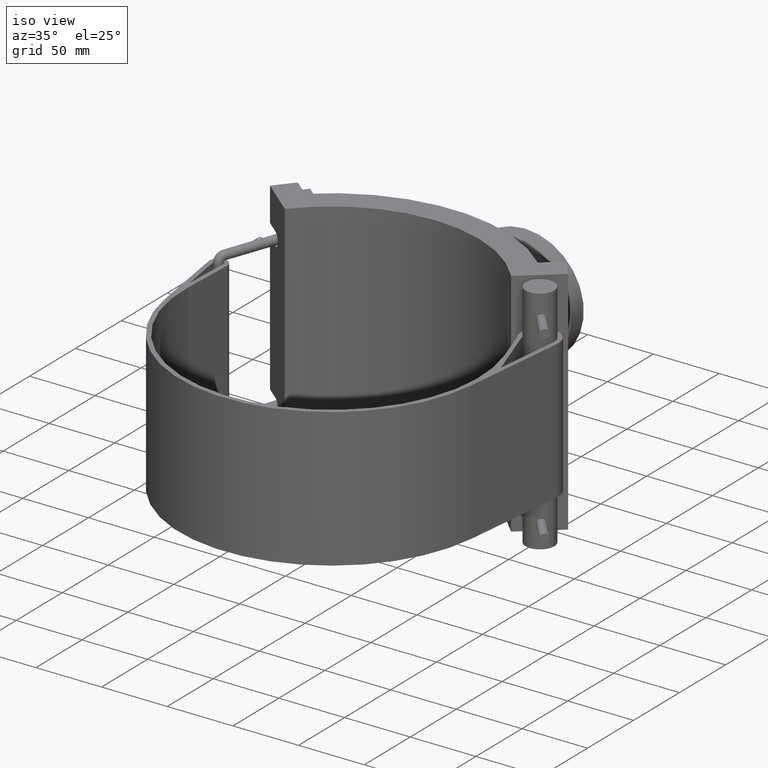
[diagram: clean part render]
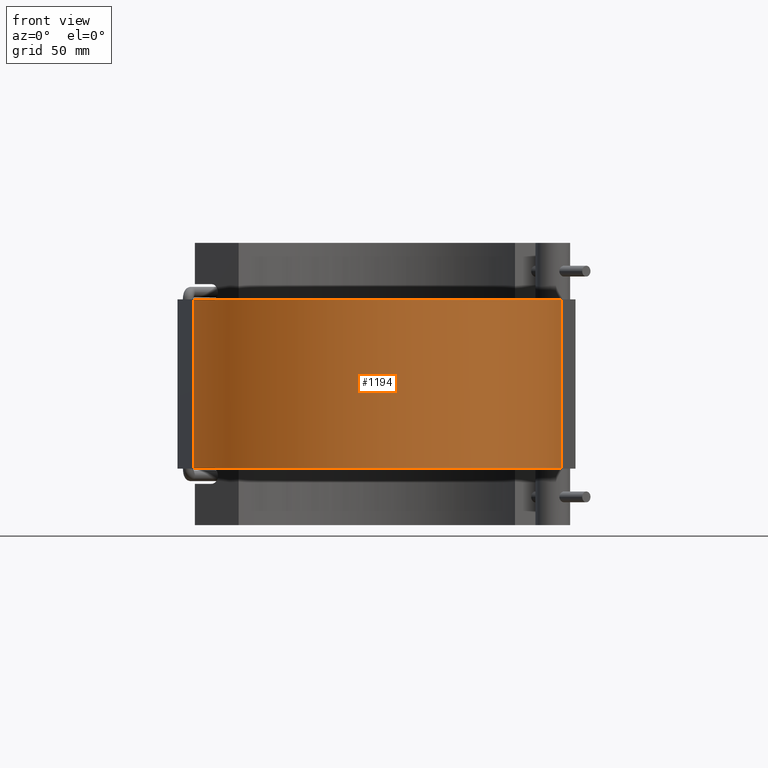
[diagram: tour spotlight — one face highlighted and labeled with its STEP entity id]
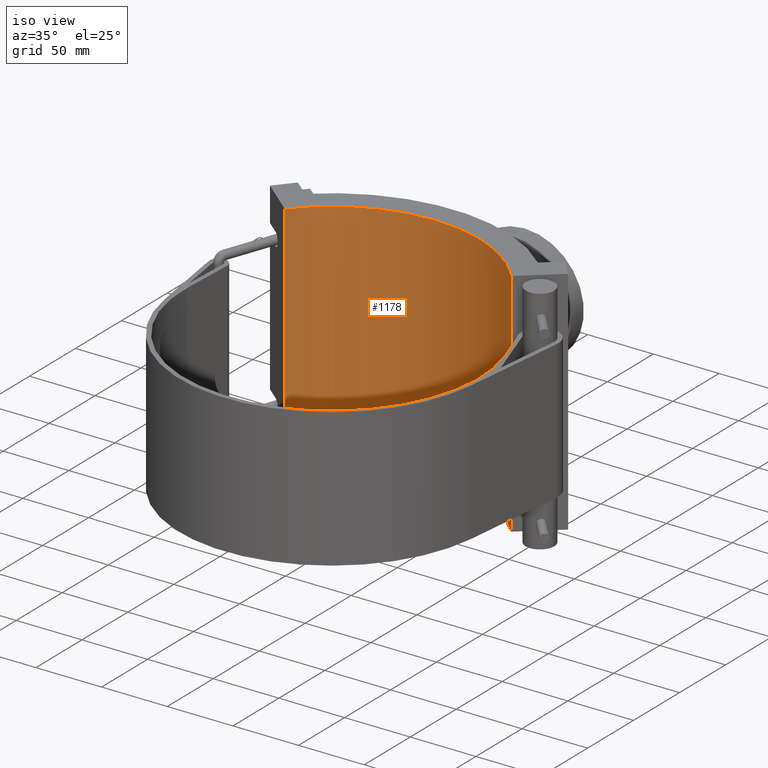
[diagram: tour spotlight — one face highlighted and labeled with its STEP entity id]
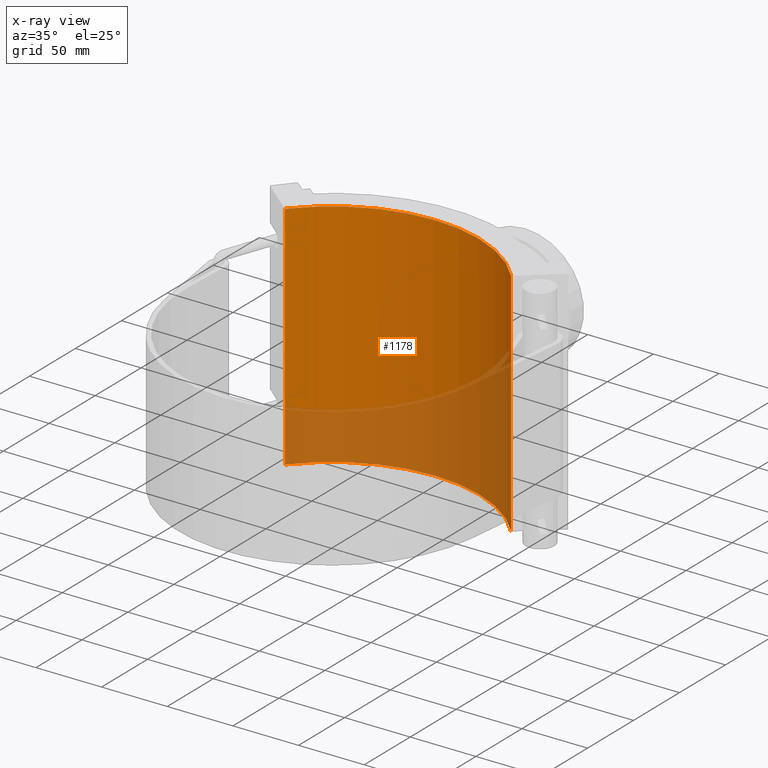
[diagram: x-ray of the same camera — body ghosted, this tour face saturated]
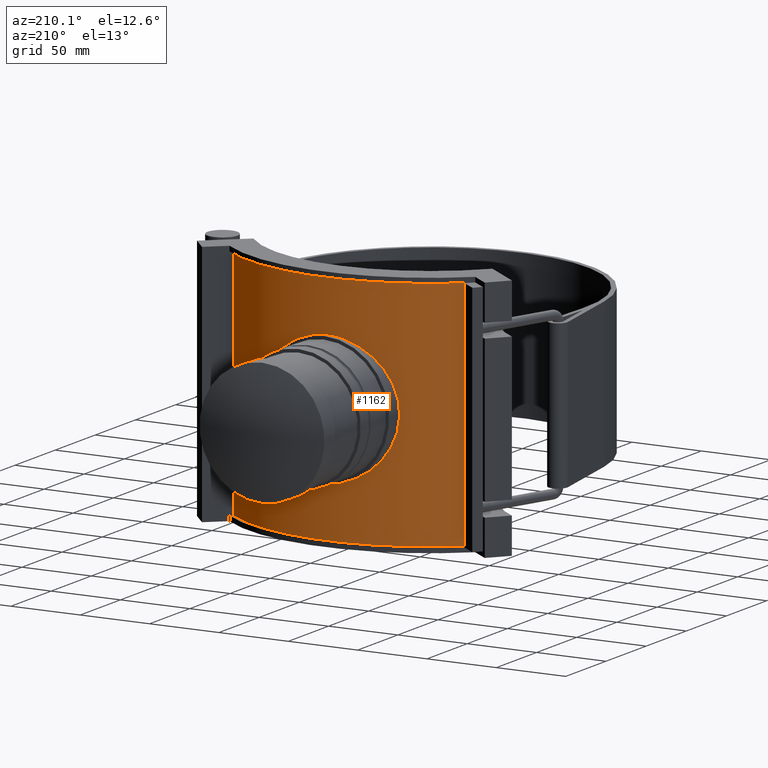
[diagram: tour spotlight — one face highlighted and labeled with its STEP entity id]
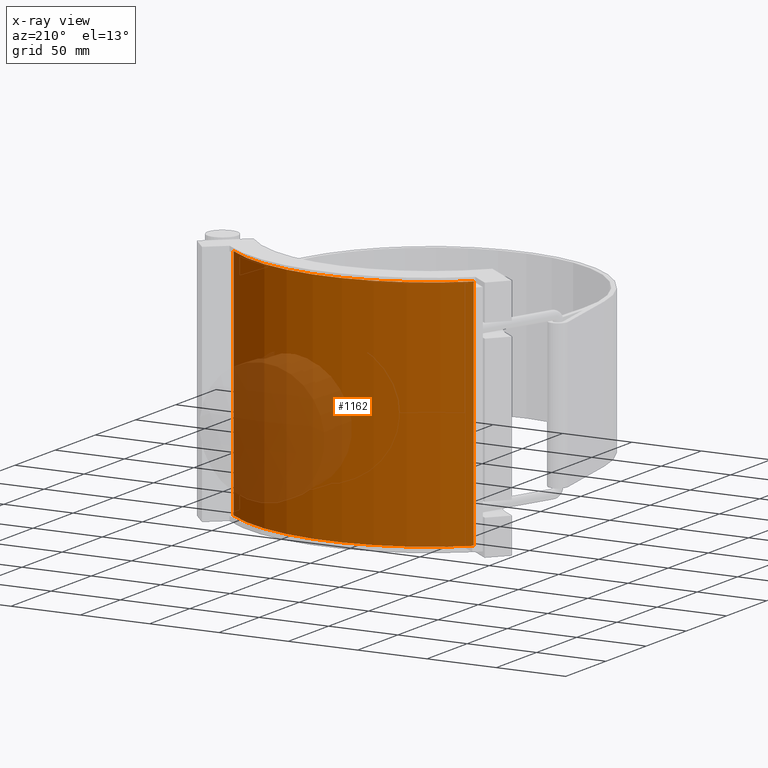
[diagram: x-ray of the same camera — body ghosted, this tour face saturated]
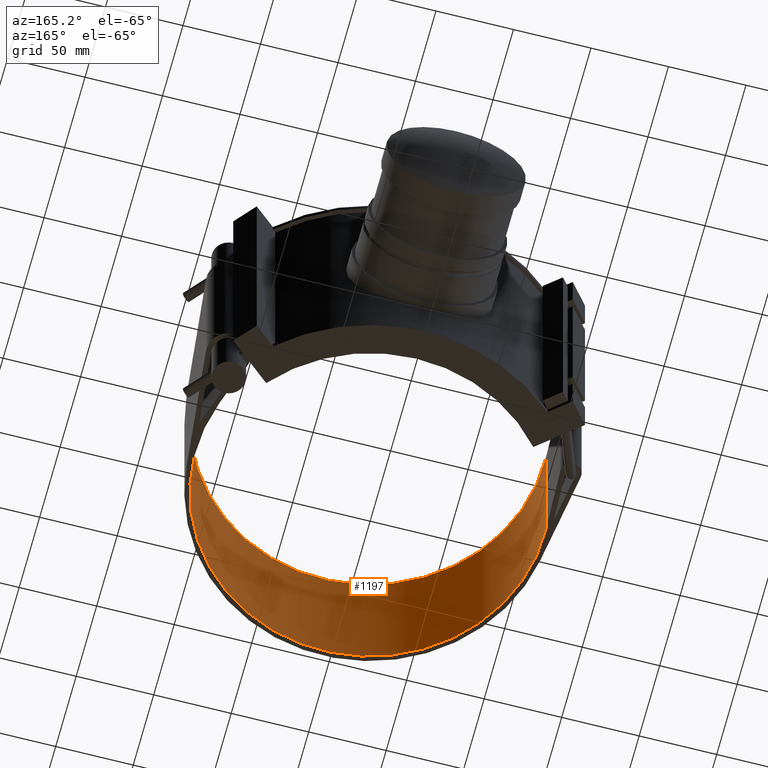
[diagram: tour spotlight — one face highlighted and labeled with its STEP entity id]
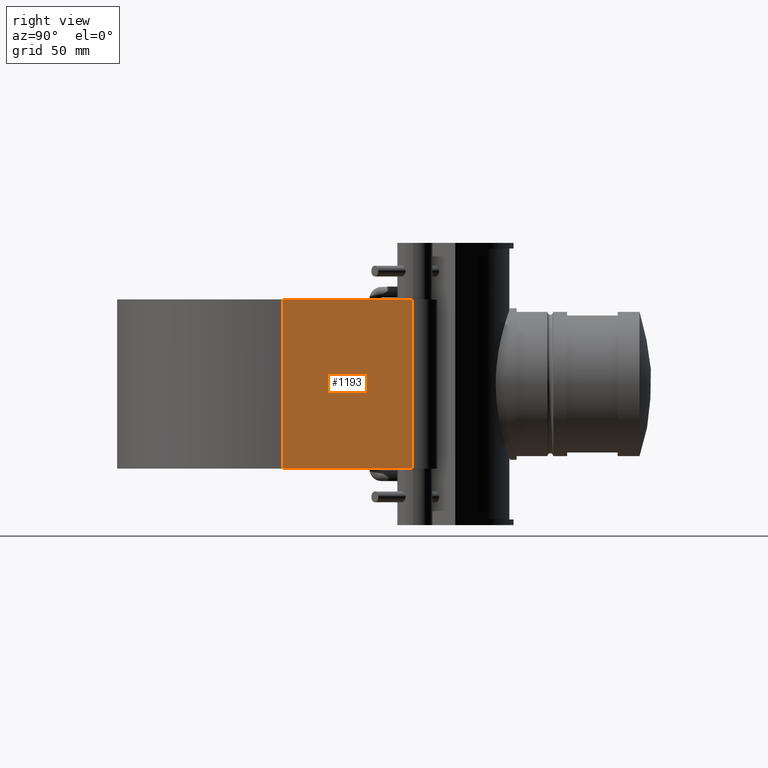
[diagram: tour spotlight — one face highlighted and labeled with its STEP entity id]
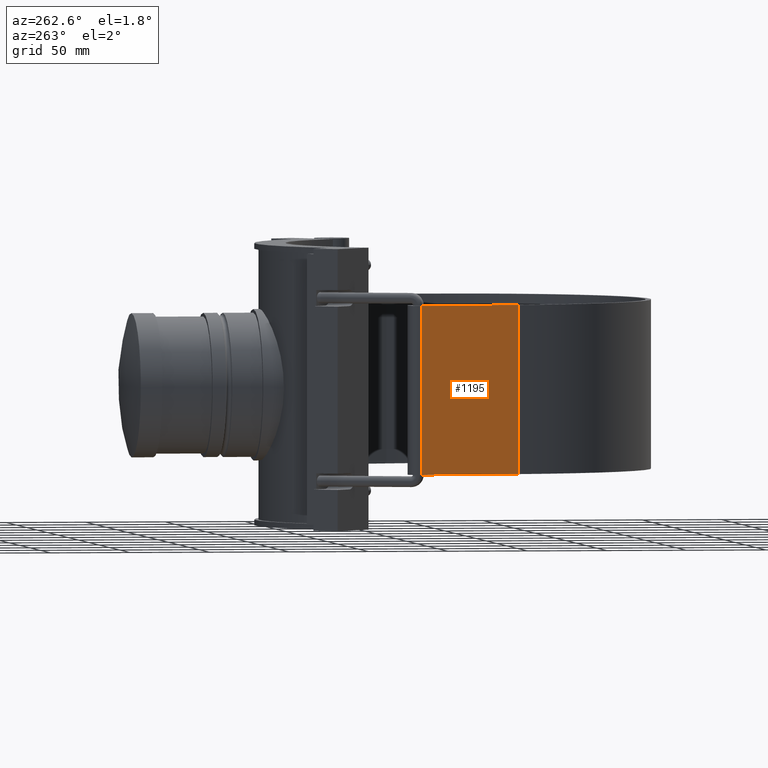
[diagram: tour spotlight — one face highlighted and labeled with its STEP entity id]
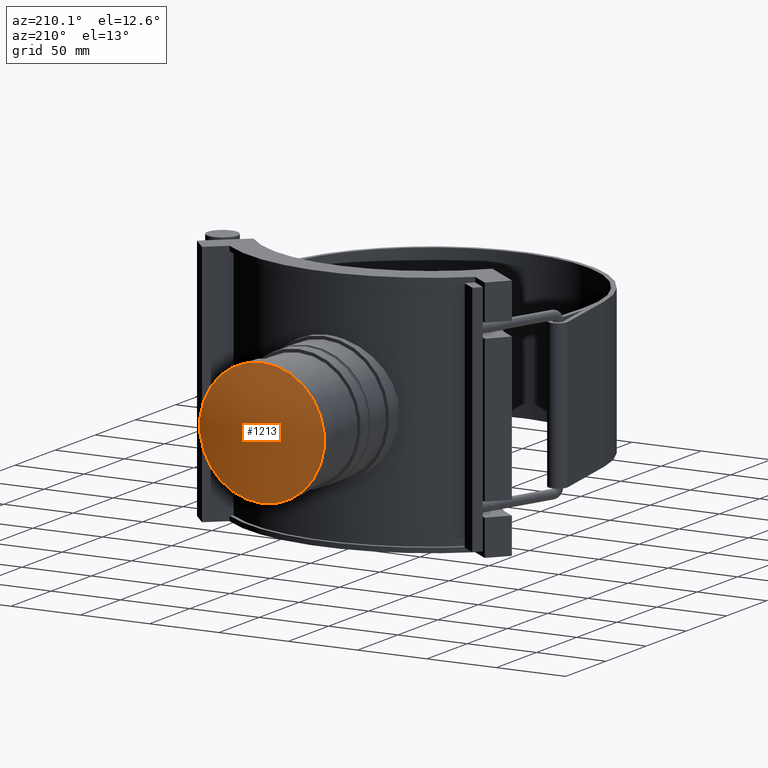
[diagram: tour spotlight — one face highlighted and labeled with its STEP entity id]
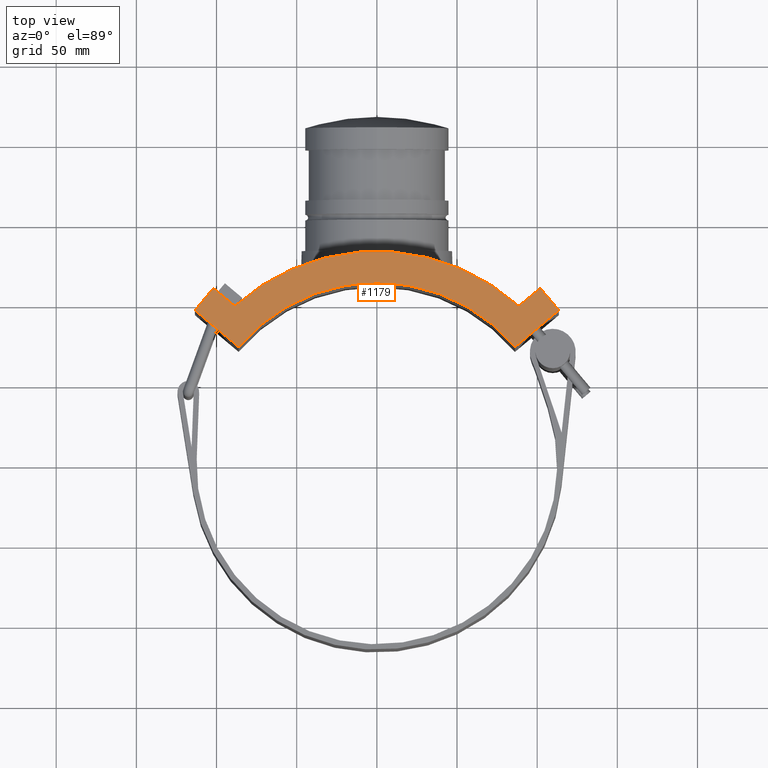
[diagram: tour spotlight — one face highlighted and labeled with its STEP entity id]
A machine part: a face-by-face anatomy tour. The part has 72 B-rep faces; the first image is the clean iso view, then the 8 largest visible faces are spotlighted one at a time (largest first), each with its STEP entity span.

Face 1 — front view, entity #1194. In plain terms, the highlighted cylindrical surface (partial cylindrical patch) has radius 115.875 mm, axis along (0, 0, 1).
Definition (entity closure, byte-faithful):
#121=LINE('',#2114,#224);
#122=LINE('',#2116,#225);
#224=VECTOR('',#1624,105.6);
#225=VECTOR('',#1627,105.6);
#360=FACE_OUTER_BOUND('',#448,.T.);
#448=EDGE_LOOP('',(#1061,#1062,#1063,#1064));
#504=CIRCLE('',#1281,115.875);
#512=CIRCLE('',#1290,115.875);
#604=VERTEX_POINT('',#2043);
#605=VERTEX_POINT('',#2045);
#619=VERTEX_POINT('',#2075);
#620=VERTEX_POINT('',#2077);
#747=EDGE_CURVE('',#604,#605,#504,.T.);
#763=EDGE_CURVE('',#619,#620,#512,.T.);
#782=EDGE_CURVE('',#604,#620,#121,.T.);
#783=EDGE_CURVE('',#605,#619,#122,.T.);
#1061=ORIENTED_EDGE('',*,*,#782,.T.);
#1062=ORIENTED_EDGE('',*,*,#763,.F.);
#1063=ORIENTED_EDGE('',*,*,#783,.F.);
#1064=ORIENTED_EDGE('',*,*,#747,.F.);
#1131=CYLINDRICAL_SURFACE('',#1309,115.875);
#1194=ADVANCED_FACE('',(#360),#1131,.T.);
#1281=AXIS2_PLACEMENT_3D('',#2046,#1550,#1551);
#1290=AXIS2_PLACEMENT_3D('',#2078,#1576,#1577);
#1309=AXIS2_PLACEMENT_3D('',#2115,#1625,#1626);
#1550=DIRECTION('center_axis',(0.,0.,-1.));
#1551=DIRECTION('ref_axis',(0.843056466556245,0.537825059101655,0.));
#1576=DIRECTION('center_axis',(0.,0.,1.));
#1577=DIRECTION('ref_axis',(0.843056466556245,0.537825059101655,0.));
#1624=DIRECTION('',(0.,0.,1.));
#1625=DIRECTION('center_axis',(0.,0.,1.));
#1626=DIRECTION('ref_axis',(0.843056466556245,0.537825059101655,0.));
#1627=DIRECTION('',(0.,0.,1.));
#2043=CARTESIAN_POINT('',(115.208094420165,-12.4141292515579,-52.8));
#2045=CARTESIAN_POINT('',(-114.448078862671,-18.128785663798,-52.8));
#2046=CARTESIAN_POINT('Origin',(0.,0.,-52.8));
#2075=CARTESIAN_POINT('',(-114.448078862671,-18.128785663798,52.8));
#2077=CARTESIAN_POINT('',(115.208094420165,-12.4141292515579,52.8));
#2078=CARTESIAN_POINT('Origin',(0.,0.,52.8));
#2114=CARTESIAN_POINT('',(115.208094420165,-12.4141292515579,0.));
#2115=CARTESIAN_POINT('Origin',(0.,0.,0.));
#2116=CARTESIAN_POINT('',(-114.448078862671,-18.128785663798,0.));

Face 2 — iso view, entity #1178. An x-ray twin of the same camera follows (body ghosted, this face saturated) — the face is partly hidden behind the body. In plain terms, the highlighted cylindrical surface (partial cylindrical patch) has radius 112.5 mm, axis along (0, 0, 1).
Definition (entity closure, byte-faithful):
#90=LINE('',#2011,#193);
#94=LINE('',#2018,#197);
#193=VECTOR('',#1515,176.);
#197=VECTOR('',#1523,176.);
#344=FACE_OUTER_BOUND('',#424,.T.);
#424=EDGE_LOOP('',(#977,#978,#979,#980));
#498=CIRCLE('',#1258,112.5);
#502=CIRCLE('',#1275,112.5);
#582=VERTEX_POINT('',#1968);
#583=VERTEX_POINT('',#1970);
#594=VERTEX_POINT('',#2010);
#595=VERTEX_POINT('',#2016);
#711=EDGE_CURVE('',#582,#583,#498,.T.);
#731=EDGE_CURVE('',#594,#583,#90,.T.);
#735=EDGE_CURVE('',#582,#595,#94,.T.);
#737=EDGE_CURVE('',#594,#595,#502,.T.);
#977=ORIENTED_EDGE('',*,*,#731,.T.);
#978=ORIENTED_EDGE('',*,*,#711,.F.);
#979=ORIENTED_EDGE('',*,*,#735,.T.);
#980=ORIENTED_EDGE('',*,*,#737,.F.);
#1126=CYLINDRICAL_SURFACE('',#1274,112.5);
#1178=ADVANCED_FACE('',(#344),#1126,.F.);
#1258=AXIS2_PLACEMENT_3D('',#1971,#1474,#1475);
#1274=AXIS2_PLACEMENT_3D('',#2021,#1528,#1529);
#1275=AXIS2_PLACEMENT_3D('',#2022,#1530,#1531);
#1474=DIRECTION('center_axis',(0.,0.,1.));
#1475=DIRECTION('ref_axis',(-1.,0.,0.));
#1515=DIRECTION('',(0.,0.,-1.));
#1523=DIRECTION('',(0.,0.,1.));
#1528=DIRECTION('center_axis',(0.,0.,1.));
#1529=DIRECTION('ref_axis',(-1.,0.,0.));
#1530=DIRECTION('center_axis',(0.,0.,-1.));
#1531=DIRECTION('ref_axis',(-1.,0.,0.));
#1968=CARTESIAN_POINT('',(86.179999850885,72.3136060897357,-88.));
#1970=CARTESIAN_POINT('',(-86.179999850885,72.3136060897357,-88.));
#1971=CARTESIAN_POINT('Origin',(0.,0.,-88.));
#2010=CARTESIAN_POINT('',(-86.179999850885,72.3136060897357,88.));
#2011=CARTESIAN_POINT('',(-86.179999850885,72.3136060897357,0.));
#2016=CARTESIAN_POINT('',(86.179999850885,72.3136060897357,88.));
#2018=CARTESIAN_POINT('',(86.179999850885,72.3136060897357,0.));
#2021=CARTESIAN_POINT('Origin',(0.,0.,0.));
#2022=CARTESIAN_POINT('Origin',(0.,0.,88.));

Face 3 — auxiliary view, entity #1162. An x-ray twin of the same camera follows (body ghosted, this face saturated) — the face is partly hidden behind the body. In plain terms, the highlighted cylindrical surface (partial cylindrical patch) has radius 129.375 mm, axis along (0, 0, 1).
Definition (entity closure, byte-faithful):
#59=LINE('',#1931,#162);
#70=LINE('',#1956,#173);
#162=VECTOR('',#1432,168.96);
#173=VECTOR('',#1451,168.96);
#328=FACE_OUTER_BOUND('',#406,.T.);
#406=EDGE_LOOP('',(#891,#892,#893,#894));
#493=CIRCLE('',#1249,129.375);
#495=CIRCLE('',#1252,129.375);
#570=VERTEX_POINT('',#1928);
#571=VERTEX_POINT('',#1930);
#580=VERTEX_POINT('',#1953);
#581=VERTEX_POINT('',#1955);
#690=EDGE_CURVE('',#571,#570,#59,.T.);
#703=EDGE_CURVE('',#581,#580,#70,.T.);
#705=EDGE_CURVE('',#570,#581,#493,.T.);
#707=EDGE_CURVE('',#580,#571,#495,.T.);
#891=ORIENTED_EDGE('',*,*,#703,.T.);
#892=ORIENTED_EDGE('',*,*,#707,.T.);
#893=ORIENTED_EDGE('',*,*,#690,.T.);
#894=ORIENTED_EDGE('',*,*,#705,.T.);
#1121=CYLINDRICAL_SURFACE('',#1251,129.375);
#1162=ADVANCED_FACE('',(#328),#1121,.T.);
#1249=AXIS2_PLACEMENT_3D('',#1959,#1455,#1456);
#1251=AXIS2_PLACEMENT_3D('',#1961,#1459,#1460);
#1252=AXIS2_PLACEMENT_3D('',#1962,#1461,#1462);
#1432=DIRECTION('',(0.,0.,1.));
#1451=DIRECTION('',(0.,0.,-1.));
#1455=DIRECTION('center_axis',(0.,0.,-1.));
#1456=DIRECTION('ref_axis',(-1.,0.,0.));
#1459=DIRECTION('center_axis',(0.,0.,1.));
#1460=DIRECTION('ref_axis',(-1.,0.,0.));
#1461=DIRECTION('center_axis',(0.,0.,1.));
#1462=DIRECTION('ref_axis',(-1.,0.,0.));
#1928=CARTESIAN_POINT('',(-86.5729145309936,96.1406318608801,84.48));
#1930=CARTESIAN_POINT('',(-86.5729145309936,96.1406318608801,-84.48));
#1931=CARTESIAN_POINT('',(-86.5729145309936,96.1406318608801,0.));
#1953=CARTESIAN_POINT('',(86.5729145309936,96.1406318608801,-84.48));
#1955=CARTESIAN_POINT('',(86.5729145309936,96.1406318608801,84.48));
#1956=CARTESIAN_POINT('',(86.5729145309936,96.1406318608801,0.));
#1959=CARTESIAN_POINT('Origin',(0.,0.,84.48));
#1961=CARTESIAN_POINT('Origin',(0.,0.,0.));
#1962=CARTESIAN_POINT('Origin',(0.,0.,-84.48));

Face 4 — auxiliary view, entity #1197. In plain terms, the highlighted cylindrical surface (partial cylindrical patch) has radius 112.5 mm, axis along (0, 0, 1).
Definition (entity closure, byte-faithful):
#119=LINE('',#2111,#222);
#125=LINE('',#2121,#228);
#222=VECTOR('',#1620,105.6);
#228=VECTOR('',#1634,105.6);
#363=FACE_OUTER_BOUND('',#451,.T.);
#451=EDGE_LOOP('',(#1073,#1074,#1075,#1076));
#506=CIRCLE('',#1283,112.5);
#510=CIRCLE('',#1288,112.5);
#608=VERTEX_POINT('',#2051);
#609=VERTEX_POINT('',#2053);
#615=VERTEX_POINT('',#2067);
#616=VERTEX_POINT('',#2069);
#751=EDGE_CURVE('',#608,#609,#506,.T.);
#759=EDGE_CURVE('',#615,#616,#510,.T.);
#780=EDGE_CURVE('',#609,#615,#119,.T.);
#786=EDGE_CURVE('',#608,#616,#125,.T.);
#1073=ORIENTED_EDGE('',*,*,#786,.T.);
#1074=ORIENTED_EDGE('',*,*,#759,.F.);
#1075=ORIENTED_EDGE('',*,*,#780,.F.);
#1076=ORIENTED_EDGE('',*,*,#751,.F.);
#1132=CYLINDRICAL_SURFACE('',#1312,112.5);
#1197=ADVANCED_FACE('',(#363),#1132,.F.);
#1283=AXIS2_PLACEMENT_3D('',#2054,#1556,#1557);
#1288=AXIS2_PLACEMENT_3D('',#2070,#1570,#1571);
#1312=AXIS2_PLACEMENT_3D('',#2122,#1635,#1636);
#1556=DIRECTION('center_axis',(0.,0.,1.));
#1557=DIRECTION('ref_axis',(0.999267082188382,-0.0382792170076393,0.));
#1570=DIRECTION('center_axis',(0.,0.,-1.));
#1571=DIRECTION('ref_axis',(0.999267082188382,-0.0382792170076393,0.));
#1620=DIRECTION('',(0.,0.,1.));
#1634=DIRECTION('',(0.,0.,1.));
#1635=DIRECTION('center_axis',(0.,0.,1.));
#1636=DIRECTION('ref_axis',(0.999267082188382,-0.0382792170076393,0.));
#2051=CARTESIAN_POINT('',(-112.417546746193,4.30641191335942,-52.8));
#2053=CARTESIAN_POINT('',(106.577970859299,36.019246626136,-52.8));
#2054=CARTESIAN_POINT('Origin',(0.,0.,-52.8));
#2067=CARTESIAN_POINT('',(106.577970859299,36.019246626136,52.8));
#2069=CARTESIAN_POINT('',(-112.417546746193,4.30641191335942,52.8));
#2070=CARTESIAN_POINT('Origin',(0.,0.,52.8));
#2111=CARTESIAN_POINT('',(106.577970859299,36.019246626136,0.));
#2121=CARTESIAN_POINT('',(-112.417546746193,4.30641191335942,0.));
#2122=CARTESIAN_POINT('Origin',(0.,0.,0.));

Face 5 — right view, entity #1193. In plain terms, the highlighted planar face has unit normal (0.9942, -0.1071, 0).
Definition (entity closure, byte-faithful):
#102=LINE('',#2044,#205);
#111=LINE('',#2080,#214);
#120=LINE('',#2113,#223);
#121=LINE('',#2114,#224);
#205=VECTOR('',#1549,81.3525979444275);
#214=VECTOR('',#1578,81.3525979444275);
#223=VECTOR('',#1623,105.6);
#224=VECTOR('',#1624,105.6);
#264=PLANE('',#1308);
#359=FACE_OUTER_BOUND('',#447,.T.);
#447=EDGE_LOOP('',(#1057,#1058,#1059,#1060));
#603=VERTEX_POINT('',#2041);
#604=VERTEX_POINT('',#2043);
#620=VERTEX_POINT('',#2077);
#621=VERTEX_POINT('',#2079);
#746=EDGE_CURVE('',#603,#604,#102,.T.);
#764=EDGE_CURVE('',#620,#621,#111,.T.);
#781=EDGE_CURVE('',#603,#621,#120,.T.);
#782=EDGE_CURVE('',#604,#620,#121,.T.);
#1057=ORIENTED_EDGE('',*,*,#781,.T.);
#1058=ORIENTED_EDGE('',*,*,#764,.F.);
#1059=ORIENTED_EDGE('',*,*,#782,.F.);
#1060=ORIENTED_EDGE('',*,*,#746,.F.);
#1193=ADVANCED_FACE('',(#359),#264,.T.);
#1308=AXIS2_PLACEMENT_3D('',#2112,#1621,#1622);
#1549=DIRECTION('',(-0.107133801523693,-0.994244612040257,0.));
#1578=DIRECTION('',(0.107133801523693,0.994244612040257,0.));
#1621=DIRECTION('center_axis',(0.994244612040257,-0.107133801523693,0.));
#1622=DIRECTION('ref_axis',(0.107133801523693,0.994244612040257,0.));
#1623=DIRECTION('',(0.,0.,1.));
#1624=DIRECTION('',(0.,0.,1.));
#2041=CARTESIAN_POINT('',(123.92370750178,68.4702529301665,-52.8));
#2043=CARTESIAN_POINT('',(115.208094420165,-12.4141292515579,-52.8));
#2044=CARTESIAN_POINT('',(115.208094420165,-12.4141292515579,-52.8));
#2077=CARTESIAN_POINT('',(115.208094420165,-12.4141292515579,52.8));
#2079=CARTESIAN_POINT('',(123.92370750178,68.4702529301665,52.8));
#2080=CARTESIAN_POINT('',(115.208094420165,-12.4141292515579,52.8));
#2112=CARTESIAN_POINT('Origin',(115.208094420165,-12.4141292515579,0.));
#2113=CARTESIAN_POINT('',(123.92370750178,68.4702529301665,0.));
#2114=CARTESIAN_POINT('',(115.208094420165,-12.4141292515579,0.));

Face 6 — auxiliary view, entity #1195. In plain terms, the highlighted planar face has unit normal (-0.9877, -0.1565, 0).
Definition (entity closure, byte-faithful):
#103=LINE('',#2048,#206);
#110=LINE('',#2076,#213);
#122=LINE('',#2116,#225);
#123=LINE('',#2118,#226);
#206=VECTOR('',#1552,62.8466533212205);
#213=VECTOR('',#1575,62.8466533212205);
#225=VECTOR('',#1627,105.6);
#226=VECTOR('',#1630,105.6);
#265=PLANE('',#1310);
#361=FACE_OUTER_BOUND('',#449,.T.);
#449=EDGE_LOOP('',(#1065,#1066,#1067,#1068));
#605=VERTEX_POINT('',#2045);
#606=VERTEX_POINT('',#2047);
#618=VERTEX_POINT('',#2073);
#619=VERTEX_POINT('',#2075);
#748=EDGE_CURVE('',#605,#606,#103,.T.);
#762=EDGE_CURVE('',#618,#619,#110,.T.);
#783=EDGE_CURVE('',#605,#619,#122,.T.);
#784=EDGE_CURVE('',#606,#618,#123,.T.);
#1065=ORIENTED_EDGE('',*,*,#783,.T.);
#1066=ORIENTED_EDGE('',*,*,#762,.F.);
#1067=ORIENTED_EDGE('',*,*,#784,.F.);
#1068=ORIENTED_EDGE('',*,*,#748,.F.);
#1195=ADVANCED_FACE('',(#361),#265,.T.);
#1310=AXIS2_PLACEMENT_3D('',#2117,#1628,#1629);
#1552=DIRECTION('',(-0.156451224714547,0.98768568597774,0.));
#1575=DIRECTION('',(0.156451224714547,-0.98768568597774,0.));
#1627=DIRECTION('',(0.,0.,1.));
#1628=DIRECTION('center_axis',(-0.98768568597774,-0.156451224714547,0.));
#1629=DIRECTION('ref_axis',(0.156451224714546,-0.98768568597774,0.));
#1630=DIRECTION('',(0.,0.,1.));
#2045=CARTESIAN_POINT('',(-114.448078862671,-18.128785663798,-52.8));
#2047=CARTESIAN_POINT('',(-124.280514743986,43.9439542331768,-52.8));
#2048=CARTESIAN_POINT('',(-124.280514743986,43.9439542331768,-52.8));
#2073=CARTESIAN_POINT('',(-124.280514743986,43.9439542331768,52.8));
#2075=CARTESIAN_POINT('',(-114.448078862671,-18.128785663798,52.8));
#2076=CARTESIAN_POINT('',(-124.280514743986,43.9439542331768,52.8));
#2116=CARTESIAN_POINT('',(-114.448078862671,-18.128785663798,0.));
#2117=CARTESIAN_POINT('Origin',(-124.280514743986,43.9439542331768,0.));
#2118=CARTESIAN_POINT('',(-124.280514743986,43.9439542331768,0.));

Face 7 — auxiliary view, entity #1213. In plain terms, the highlighted spherical surface has radius 141.43 mm.
Definition (entity closure, byte-faithful):
#11=SPHERICAL_SURFACE('',#1339,141.430102040816);
#379=FACE_OUTER_BOUND('',#482,.T.);
#482=EDGE_LOOP('',(#1116));
#531=CIRCLE('',#1338,45.);
#639=VERTEX_POINT('',#2225);
#798=EDGE_CURVE('',#639,#639,#531,.T.);
#1116=ORIENTED_EDGE('',*,*,#798,.T.);
#1213=ADVANCED_FACE('',(#379),#11,.T.);
#1338=AXIS2_PLACEMENT_3D('',#2226,#1687,#1688);
#1339=AXIS2_PLACEMENT_3D('',#2227,#1689,#1690);
#1687=DIRECTION('center_axis',(0.,1.,-4.08357894115E-17));
#1688=DIRECTION('ref_axis',(1.,0.,0.));
#1689=DIRECTION('center_axis',(6.12323399573677E-17,0.,1.));
#1690=DIRECTION('ref_axis',(1.,0.,0.));
#2225=CARTESIAN_POINT('',(0.,210.15,45.));
#2226=CARTESIAN_POINT('Origin',(0.,210.15,-8.58164114482673E-15));
#2227=CARTESIAN_POINT('Origin',(0.,76.0698979591835,-8.88178419700125E-15));

Face 8 — top view, entity #1179. In plain terms, the highlighted planar face has unit normal (0, 0, 1).
Definition (entity closure, byte-faithful):
#56=LINE('',#1925,#159);
#61=LINE('',#1938,#164);
#66=LINE('',#1948,#169);
#88=LINE('',#2006,#191);
#91=LINE('',#2012,#194);
#93=LINE('',#2017,#196);
#159=VECTOR('',#1427,17.4346127309903);
#164=VECTOR('',#1440,18.);
#169=VECTOR('',#1447,17.4346127309903);
#191=VECTOR('',#1509,18.);
#194=VECTOR('',#1516,35.6637273392137);
#196=VECTOR('',#1522,35.6637273392137);
#256=PLANE('',#1276);
#345=FACE_OUTER_BOUND('',#425,.T.);
#425=EDGE_LOOP('',(#981,#982,#983,#984,#985,#986,#987,#988));
#501=CIRCLE('',#1273,131.9625);
#502=CIRCLE('',#1275,112.5);
#568=VERTEX_POINT('',#1922);
#569=VERTEX_POINT('',#1924);
#572=VERTEX_POINT('',#1936);
#573=VERTEX_POINT('',#1937);
#576=VERTEX_POINT('',#1945);
#593=VERTEX_POINT('',#2004);
#594=VERTEX_POINT('',#2010);
#595=VERTEX_POINT('',#2016);
#687=EDGE_CURVE('',#568,#569,#56,.T.);
#694=EDGE_CURVE('',#572,#573,#61,.T.);
#699=EDGE_CURVE('',#573,#576,#66,.T.);
#729=EDGE_CURVE('',#593,#568,#88,.T.);
#732=EDGE_CURVE('',#593,#594,#91,.T.);
#734=EDGE_CURVE('',#595,#572,#93,.T.);
#736=EDGE_CURVE('',#569,#576,#501,.T.);
#737=EDGE_CURVE('',#594,#595,#502,.T.);
#981=ORIENTED_EDGE('',*,*,#736,.F.);
#982=ORIENTED_EDGE('',*,*,#687,.F.);
#983=ORIENTED_EDGE('',*,*,#729,.F.);
#984=ORIENTED_EDGE('',*,*,#732,.T.);
#985=ORIENTED_EDGE('',*,*,#737,.T.);
#986=ORIENTED_EDGE('',*,*,#734,.T.);
#987=ORIENTED_EDGE('',*,*,#694,.T.);
#988=ORIENTED_EDGE('',*,*,#699,.T.);
#1179=ADVANCED_FACE('',(#345),#256,.T.);
#1273=AXIS2_PLACEMENT_3D('',#2020,#1526,#1527);
#1275=AXIS2_PLACEMENT_3D('',#2022,#1530,#1531);
#1276=AXIS2_PLACEMENT_3D('',#2023,#1532,#1533);
#1427=DIRECTION('',(0.766044443118978,-0.64278760968654,0.));
#1440=DIRECTION('',(-0.64278760968654,0.766044443118978,0.));
#1447=DIRECTION('',(-0.766044443118978,-0.64278760968654,0.));
#1509=DIRECTION('',(0.64278760968654,0.766044443118978,0.));
#1516=DIRECTION('',(0.766044443118978,-0.642787609686539,0.));
#1522=DIRECTION('',(0.766044443118978,0.64278760968654,0.));
#1526=DIRECTION('center_axis',(0.,0.,-1.));
#1527=DIRECTION('ref_axis',(-1.,-7.18501312118754E-17,0.));
#1530=DIRECTION('center_axis',(0.,0.,-1.));
#1531=DIRECTION('ref_axis',(-1.,0.,0.));
#1532=DIRECTION('center_axis',(0.,0.,1.));
#1533=DIRECTION('ref_axis',(1.,0.,0.));
#1922=CARTESIAN_POINT('',(-101.929823025642,109.026608114763,88.));
#1924=CARTESIAN_POINT('',(-88.5741348251358,97.8198550715992,88.));
#1925=CARTESIAN_POINT('',(-81.439822913806,91.8334565780987,88.));
#1936=CARTESIAN_POINT('',(113.5,95.2378081386214,88.));
#1937=CARTESIAN_POINT('',(101.929823025642,109.026608114763,88.));
#1938=CARTESIAN_POINT('',(104.822367269232,105.579408120728,88.));
#1945=CARTESIAN_POINT('',(88.5741348251358,97.8198550715992,88.));
#1948=CARTESIAN_POINT('',(81.439822913806,91.8334565780987,88.));
#2004=CARTESIAN_POINT('',(-113.5,95.2378081386214,88.));
#2006=CARTESIAN_POINT('',(-104.822367269232,105.579408120728,88.));
#2010=CARTESIAN_POINT('',(-86.179999850885,72.3136060897357,88.));
#2012=CARTESIAN_POINT('',(-50.5445699125441,42.41192997163,88.));
#2016=CARTESIAN_POINT('',(86.179999850885,72.3136060897357,88.));
#2017=CARTESIAN_POINT('',(-1.00905226612226E-14,-1.13251185496205E-14,88.));
#2020=CARTESIAN_POINT('Origin',(0.,0.,88.));
#2022=CARTESIAN_POINT('Origin',(0.,0.,88.));
#2023=CARTESIAN_POINT('Origin',(-4.98173417321692E-15,-1.83070592144309E-15,
88.));